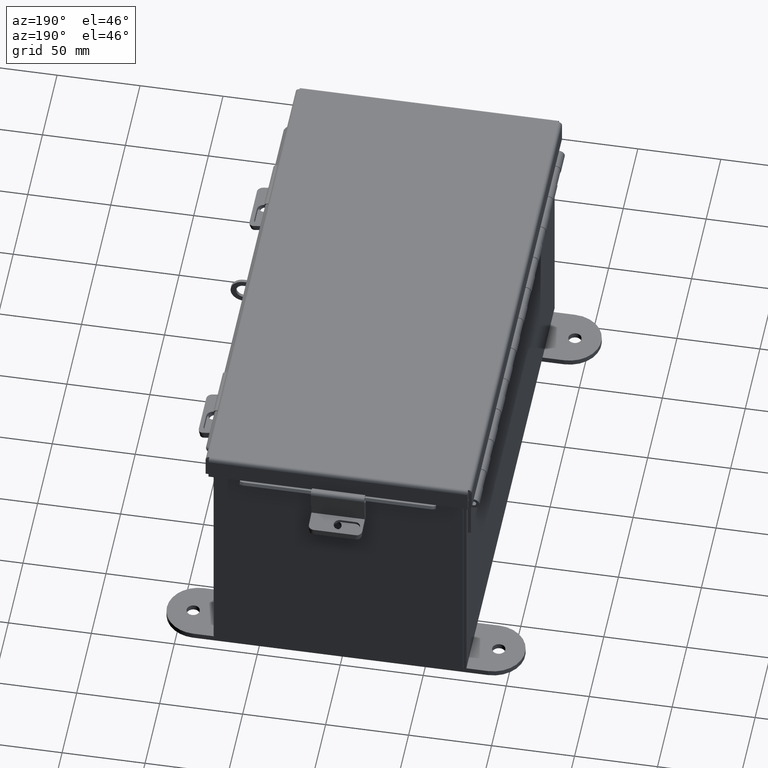
[diagram: clean part render]
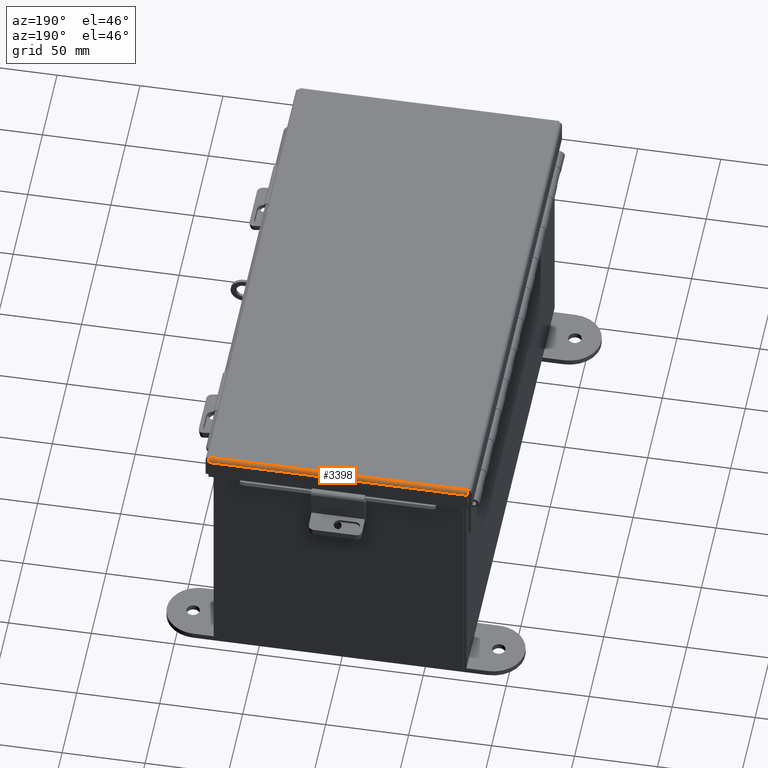
[diagram: same view with one face highlighted and labeled with its STEP entity id]
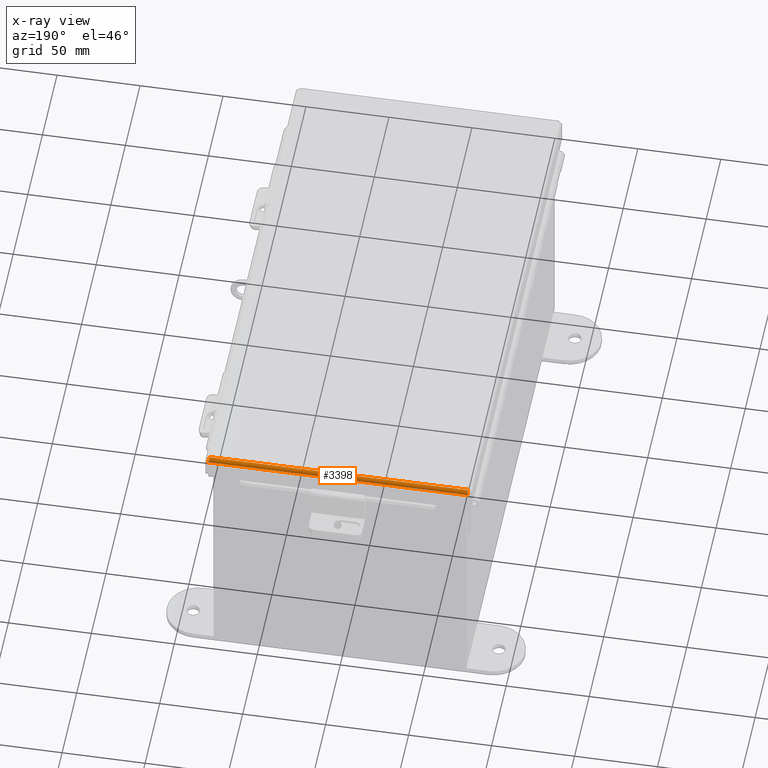
[diagram: x-ray of the same camera — body ghosted, the highlighted face saturated]
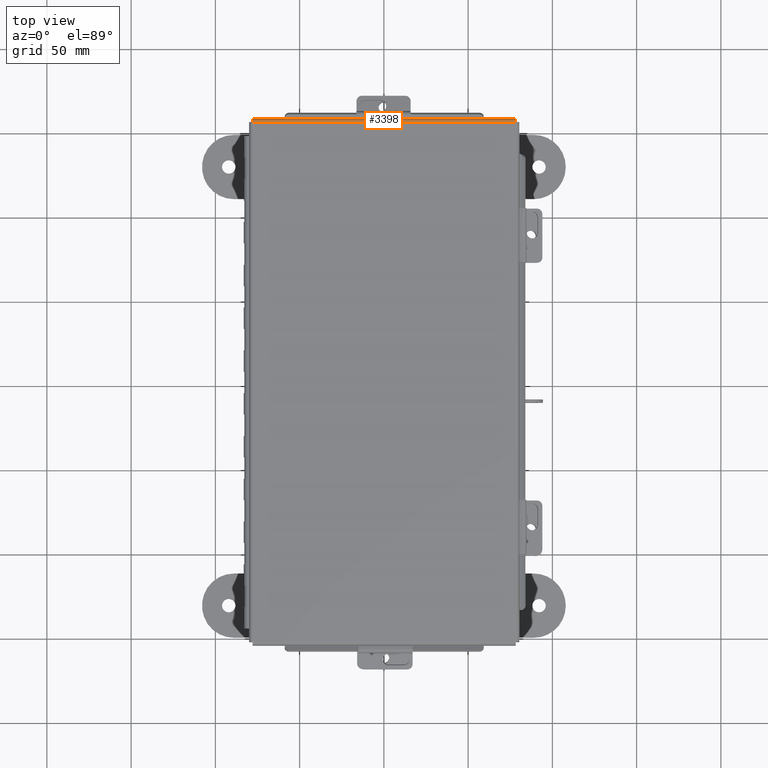
[diagram: same view with one face highlighted and labeled with its STEP entity id]
A machine part, auxiliary view. The second image highlights one B-rep face of the part: STEP entity #3398.
The next image is the same camera in x-ray: the body ghosted, the highlighted face saturated — about 0% of this face is hidden behind the body in this view.
A second angle (top view) of the same face is appended — the face is thin or edge-on in the first view.
In plain terms, the highlighted cylindrical surface (edge-blend (fillet) strip) has radius 2.2276 mm, axis along (1, -0, 0).
Its self-contained STEP definition (entity closure, byte-faithful):
#89 = CARTESIAN_POINT ( 'NONE',  ( 3.156250000000019100, 6.156250000000000000, 0.01300000000000010700 ) ) ;
#743 = DIRECTION ( 'NONE',  ( 1.000000000000000000, 8.176328298275875100E-031, 7.888609052210055000E-031 ) ) ;
#745 = CARTESIAN_POINT ( 'NONE',  ( -3.073490776823466500, 6.153967403743811500, -0.009955289458309290700 ) ) ;
#848 = FACE_OUTER_BOUND ( 'NONE', #3540, .T. ) ;
#1101 = EDGE_CURVE ( 'NONE', #8075, #7586, #6859, .T. ) ;
#1319 = CARTESIAN_POINT ( 'NONE',  ( 3.068550000000020100, 6.068550000000000100, -0.07470000000000015500 ) ) ;
#1821 = EDGE_CURVE ( 'NONE', #10540, #7586, #11802, .T. ) ;
#1877 = CARTESIAN_POINT ( 'NONE',  ( 3.069538155364720300, 6.091505289458310400, -0.07241740374381198900 ) ) ;
#1984 = CARTESIAN_POINT ( 'NONE',  ( -3.072008543776432600, 6.138680782078321100, -0.04089574734180060500 ) ) ;
#2161 = CARTESIAN_POINT ( 'NONE',  ( -3.074478932188156000, 6.068550000000000100, 0.01300000000000010700 ) ) ;
#2821 = CARTESIAN_POINT ( 'NONE',  ( 3.074478932188156900, 6.156250000000000000, 0.01299999999999901400 ) ) ;
#3210 = CARTESIAN_POINT ( 'NONE',  ( -3.070526310729398300, 6.112717384578528100, -0.06363106625866907200 ) ) ;
#3391 = ORIENTED_EDGE ( 'NONE', *, *, #1101, .F. ) ;
#3398 = ADVANCED_FACE ( 'NONE', ( #848 ), #9704, .T. ) ;
#3467 = CARTESIAN_POINT ( 'NONE',  ( 3.072502621458787600, 6.145181066258667900, -0.03116738457852840200 ) ) ;
#3540 = EDGE_LOOP ( 'NONE', ( #11385, #9526, #8796, #3391 ) ) ;
#3739 = CARTESIAN_POINT ( 'NONE',  ( 3.070526310729409400, 6.112717384578525400, -0.06363106625866905800 ) ) ;
#4200 = CARTESIAN_POINT ( 'NONE',  ( 3.074478932188156900, 6.156250000000000000, 0.01299999999999901400 ) ) ;
#4357 = CARTESIAN_POINT ( 'NONE',  ( -3.074478932188156000, 6.156250000000000000, 0.01299999999999901400 ) ) ;
#4406 = CARTESIAN_POINT ( 'NONE',  ( -3.069044077682364000, 6.080029903154993100, -0.07470000000000071000 ) ) ;
#5544 = CARTESIAN_POINT ( 'NONE',  ( -3.073984854505810400, 6.156249999999999100, 0.001520096845006937300 ) ) ;
#5615 = CARTESIAN_POINT ( 'NONE',  ( 3.072008543776442800, 6.138680782078321100, -0.04089574734180060500 ) ) ;
#5900 = AXIS2_PLACEMENT_3D ( 'NONE', #2161, #15262, #8146 ) ;
#6172 = CARTESIAN_POINT ( 'NONE',  ( -3.074478932188156000, 6.068550000000000100, -0.07470000000000015500 ) ) ;
#6208 = CARTESIAN_POINT ( 'NONE',  ( -3.074478932188156000, 6.156250000000000000, 0.01299999999999901400 ) ) ;
#6266 = DIRECTION ( 'NONE',  ( 1.000000000000000000, 8.669366364039002200E-031, 7.888609052210055000E-031 ) ) ;
#6859 = B_SPLINE_CURVE_WITH_KNOTS ( 'NONE', 3,
 ( #1319, #8056, #1877, #3739, #8316, #5615, #3467, #8533, #8086, #4200 ),
 .UNSPECIFIED., .F., .F.,
 ( 4, 2, 2, 2, 4 ),
 ( 0.0000000000000000000, 0.2500000000000000000, 0.5000000000000000000, 0.7500000000000000000, 1.000000000000000000 ),
 .UNSPECIFIED. ) ;
#7586 = VERTEX_POINT ( 'NONE', #2821 ) ;
#7797 = CARTESIAN_POINT ( 'NONE',  ( 3.068550000000020100, 6.068550000000000100, -0.07470000000000015500 ) ) ;
#7931 = VERTEX_POINT ( 'NONE', #9531 ) ;
#8056 = CARTESIAN_POINT ( 'NONE',  ( 3.069044077682376000, 6.080029903154992300, -0.07470000000000068300 ) ) ;
#8075 = VERTEX_POINT ( 'NONE', #7797 ) ;
#8086 = CARTESIAN_POINT ( 'NONE',  ( 3.073984854505821900, 6.156250000000000000, 0.001520096845006940800 ) ) ;
#8146 = DIRECTION ( 'NONE',  ( 0.0000000000000000000, 1.000000000000000000, -4.477801015840783100E-015 ) ) ;
#8316 = CARTESIAN_POINT ( 'NONE',  ( 3.071020388411754200, 6.122445747341799900, -0.05713078207832104200 ) ) ;
#8533 = CARTESIAN_POINT ( 'NONE',  ( 3.073490776823476700, 6.153967403743811500, -0.009955289458309283700 ) ) ;
#8562 = EDGE_CURVE ( 'NONE', #7931, #8075, #14592, .T. ) ;
#8796 = ORIENTED_EDGE ( 'NONE', *, *, #1821, .T. ) ;
#9169 = CARTESIAN_POINT ( 'NONE',  ( -3.072502621458777400, 6.145181066258666100, -0.03116738457852839100 ) ) ;
#9526 = ORIENTED_EDGE ( 'NONE', *, *, #15445, .F. ) ;
#9531 = CARTESIAN_POINT ( 'NONE',  ( -3.068550000000019200, 6.068550000000000100, -0.07470000000000015500 ) ) ;
#9704 = CYLINDRICAL_SURFACE ( 'NONE', #5900, 0.08770000000000026400 ) ;
#10417 = CARTESIAN_POINT ( 'NONE',  ( -3.071020388411742600, 6.122445747341799000, -0.05713078207832102800 ) ) ;
#10540 = VERTEX_POINT ( 'NONE', #6208 ) ;
#11385 = ORIENTED_EDGE ( 'NONE', *, *, #8562, .F. ) ;
#11444 = VECTOR ( 'NONE', #6266, 39.37007874015748100 ) ;
#11577 = CARTESIAN_POINT ( 'NONE',  ( -3.069538155364710100, 6.091505289458309500, -0.07241740374381197600 ) ) ;
#11802 = LINE ( 'NONE', #89, #14574 ) ;
#11861 = B_SPLINE_CURVE_WITH_KNOTS ( 'NONE', 3,
 ( #4357, #5544, #745, #9169, #1984, #10417, #3210, #11577, #4406, #12775 ),
 .UNSPECIFIED., .F., .F.,
 ( 4, 2, 2, 2, 4 ),
 ( 0.0000000000000000000, 0.2500000000000000000, 0.5000000000000000000, 0.7500000000000000000, 1.000000000000000000 ),
 .UNSPECIFIED. ) ;
#12775 = CARTESIAN_POINT ( 'NONE',  ( -3.068550000000019200, 6.068550000000000100, -0.07470000000000015500 ) ) ;
#14574 = VECTOR ( 'NONE', #743, 39.37007874015748100 ) ;
#14592 = LINE ( 'NONE', #6172, #11444 ) ;
#15262 = DIRECTION ( 'NONE',  ( -1.000000000000000000, -8.669366364039002200E-031, -7.888609052210055000E-031 ) ) ;
#15445 = EDGE_CURVE ( 'NONE', #10540, #7931, #11861, .T. ) ;